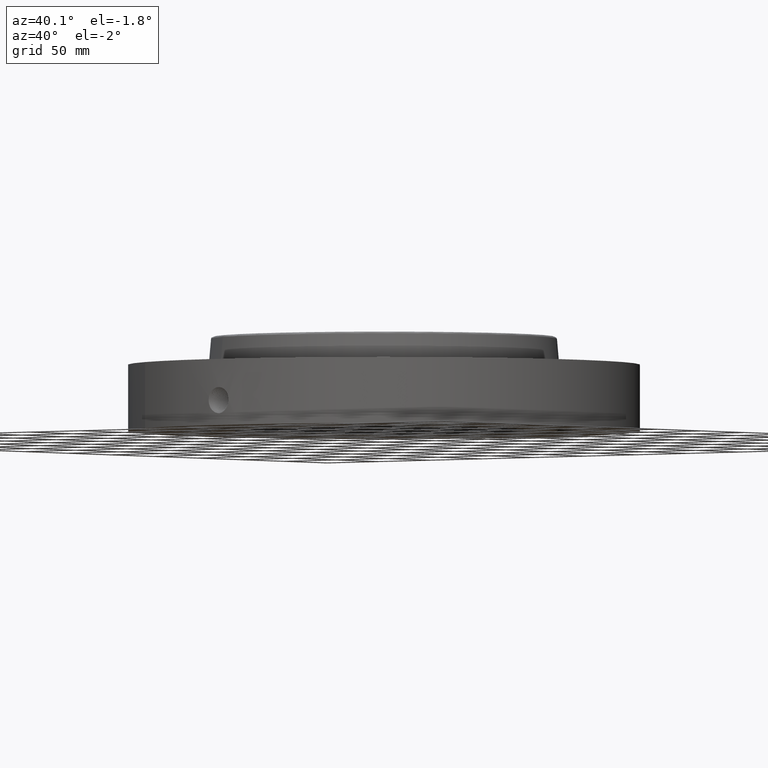
[diagram: clean part render]
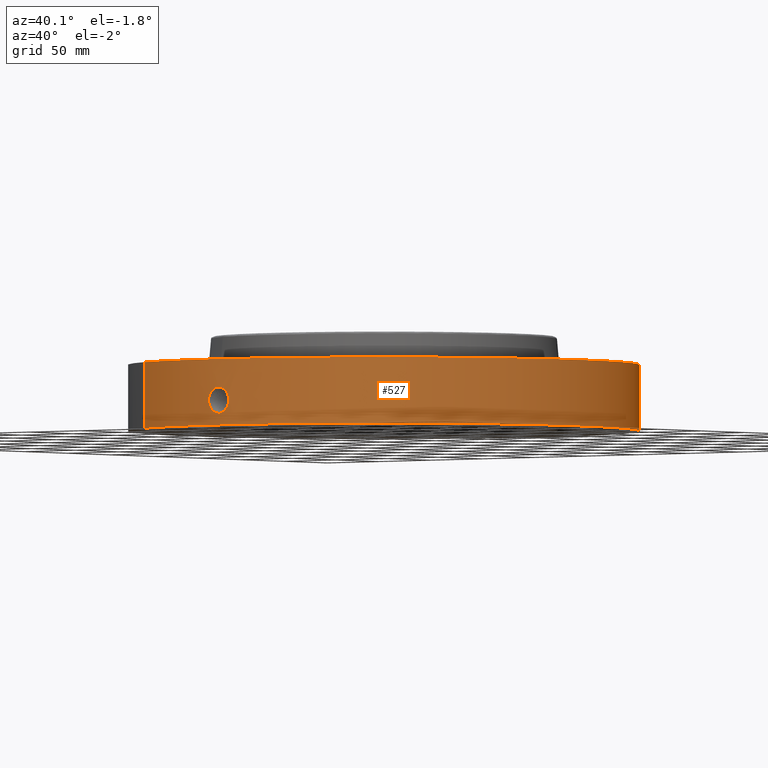
[diagram: same view with one face highlighted and labeled with its STEP entity id]
A machine part, auxiliary view. The second image highlights one B-rep face of the part: STEP entity #527.
In plain terms, the highlighted cylindrical surface (partial cylindrical patch) has radius 190.5 mm, axis along (0, 0, -1).
Its self-contained STEP definition (entity closure, byte-faithful):
#38=AXIS2_PLACEMENT_3D('Cylinder Axis2P3D',#35,#36,#37) ;
#169=AXIS2_PLACEMENT_3D('Circle Axis2P3D',#167,#168,$) ;
#431=AXIS2_PLACEMENT_3D('Circle Axis2P3D',#429,#430,$) ;
#35=CARTESIAN_POINT('Axis2P3D Location',(0.,7.99652833788E-018,1.37650000001)) ;
#44=CARTESIAN_POINT('Vertex',(-3.59569153955,-6.5818692142,5.59482469102E-016)) ;
#46=CARTESIAN_POINT('Vertex',(3.59569153955,6.5818692142,5.59482469102E-016)) ;
#49=CARTESIAN_POINT('Line Origine',(-3.59569153955,-6.5818692142,0.966500000004)) ;
#53=CARTESIAN_POINT('Vertex',(-3.59569153955,-6.5818692142,1.93300000001)) ;
#60=CARTESIAN_POINT('Vertex',(3.59569153955,6.5818692142,1.93300000001)) ;
#63=CARTESIAN_POINT('Line Origine',(3.59569153955,6.5818692142,0.966500000004)) ;
#167=CARTESIAN_POINT('Axis2P3D Location',(0.,0.,0.)) ;
#429=CARTESIAN_POINT('Axis2P3D Location',(0.,7.99652833788E-018,1.93300000001)) ;
#441=CARTESIAN_POINT('Control Point',(0.0594104657575,-7.49976468944,1.0990922853)) ;
#442=CARTESIAN_POINT('Control Point',(0.0400312568277,-7.49991820464,1.1023952919)) ;
#443=CARTESIAN_POINT('Control Point',(0.0203755811909,-7.49999808801,1.10407863695)) ;
#444=CARTESIAN_POINT('Control Point',(0.000716383780212,-7.49999996582,1.1041184985)) ;
#445=CARTESIAN_POINT('Vertex',(0.0593950914335,-7.49976506884,1.09909519577)) ;
#447=CARTESIAN_POINT('Vertex',(0.000716239520853,-7.49999996583,1.10411850891)) ;
#451=CARTESIAN_POINT('Control Point',(0.0593949822323,-7.49976481208,1.09909460985)) ;
#452=CARTESIAN_POINT('Control Point',(0.0983071289922,-7.49945664425,1.09408889341)) ;
#453=CARTESIAN_POINT('Control Point',(0.136422905128,-7.49884068805,1.08199894333)) ;
#454=CARTESIAN_POINT('Control Point',(0.171383379675,-7.49804159348,1.06374697693)) ;
#455=CARTESIAN_POINT('Vertex',(0.171383379675,-7.49804159348,1.06374697693)) ;
#459=CARTESIAN_POINT('Control Point',(0.029992772153,-7.4999400287,0.341113893808)) ;
#460=CARTESIAN_POINT('Control Point',(0.0859754396106,-7.49971615019,0.348246903299)) ;
#461=CARTESIAN_POINT('Control Point',(0.140353565065,-7.49897633265,0.365868386152)) ;
#462=CARTESIAN_POINT('Control Point',(0.190340993756,-7.49778994167,0.393444729033)) ;
#463=CARTESIAN_POINT('Control Point',(0.279604077354,-7.49501968231,0.466390974273)) ;
#464=CARTESIAN_POINT('Control Point',(0.337036155683,-7.49248678997,0.564528648789)) ;
#465=CARTESIAN_POINT('Control Point',(0.356841432344,-7.49151237844,0.619126431182)) ;
#466=CARTESIAN_POINT('Control Point',(0.372324281724,-7.49075487682,0.708434539805)) ;
#467=CARTESIAN_POINT('Control Point',(0.363000444555,-7.49121104759,0.79691789972)) ;
#468=CARTESIAN_POINT('Control Point',(0.356248771068,-7.4915413381,0.828863032848)) ;
#469=CARTESIAN_POINT('Control Point',(0.331184300143,-7.49272777792,0.906388909321)) ;
#470=CARTESIAN_POINT('Control Point',(0.286591770134,-7.49460191479,0.974928410852)) ;
#471=CARTESIAN_POINT('Control Point',(0.253241586827,-7.49586399114,1.01135982888)) ;
#472=CARTESIAN_POINT('Control Point',(0.214254502857,-7.49706168455,1.04136506218)) ;
#473=CARTESIAN_POINT('Control Point',(0.171383379675,-7.49804159348,1.06374697693)) ;
#474=CARTESIAN_POINT('Vertex',(0.029992772153,-7.4999400287,0.341113893808)) ;
#478=CARTESIAN_POINT('Control Point',(0.029992772153,-7.4999400287,0.341113893808)) ;
#479=CARTESIAN_POINT('Control Point',(0.0199890293421,-7.49998003435,0.340863903436)) ;
#480=CARTESIAN_POINT('Control Point',(0.0099811133717,-7.50000000366,0.340950971607)) ;
#481=CARTESIAN_POINT('Control Point',(-2.72878353684E-006,-7.50000000003,0.341374667804)) ;
#482=CARTESIAN_POINT('Vertex',(-2.72878353855E-006,-7.50000000003,0.341374667804)) ;
#486=CARTESIAN_POINT('Control Point',(-0.193541975774,-7.49750235105,0.395733331631)) ;
#487=CARTESIAN_POINT('Control Point',(-0.14936088554,-7.49864285026,0.371061430606)) ;
#488=CARTESIAN_POINT('Control Point',(-0.101191729167,-7.4995398925,0.353440904324)) ;
#489=CARTESIAN_POINT('Control Point',(-0.0508339965705,-7.49999998154,0.343531855698)) ;
#490=CARTESIAN_POINT('Control Point',(-2.72878353016E-006,-7.50000000003,0.341374667804)) ;
#491=CARTESIAN_POINT('Vertex',(-0.193541975774,-7.49750235105,0.395733331631)) ;
#495=CARTESIAN_POINT('Control Point',(-0.193541975774,-7.49750235105,0.395733331631)) ;
#496=CARTESIAN_POINT('Control Point',(-0.222748754013,-7.49674840163,0.412043176075)) ;
#497=CARTESIAN_POINT('Control Point',(-0.250325990989,-7.49589420272,0.431241150522)) ;
#498=CARTESIAN_POINT('Control Point',(-0.275868495729,-7.49498170376,0.45317041227)) ;
#499=CARTESIAN_POINT('Control Point',(-0.343186210977,-7.49231400116,0.524369680902)) ;
#500=CARTESIAN_POINT('Control Point',(-0.386533259801,-7.49008386226,0.613767589478)) ;
#501=CARTESIAN_POINT('Control Point',(-0.402018377371,-7.48920042012,0.677978855027)) ;
#502=CARTESIAN_POINT('Control Point',(-0.403436670721,-7.48917299794,0.792126796457)) ;
#503=CARTESIAN_POINT('Control Point',(-0.363754548984,-7.49120560471,0.896797209326)) ;
#504=CARTESIAN_POINT('Control Point',(-0.339669157487,-7.49238294558,0.938229060689)) ;
#505=CARTESIAN_POINT('Control Point',(-0.270518817152,-7.49538151079,1.02297811581)) ;
#506=CARTESIAN_POINT('Control Point',(-0.177019569708,-7.49821402013,1.07827174753)) ;
#507=CARTESIAN_POINT('Control Point',(-0.119045042946,-7.49941832226,1.09847396335)) ;
#508=CARTESIAN_POINT('Control Point',(-0.0590717686378,-7.50000020374,1.10705030606)) ;
#509=CARTESIAN_POINT('Control Point',(2.58579355351E-005,-7.49999999999,1.10415298433)) ;
#510=CARTESIAN_POINT('Vertex',(2.58579355316E-005,-7.49999999999,1.10415298433)) ;
#514=CARTESIAN_POINT('Control Point',(0.000716239510403,-7.49999996583,1.1041185089)) ;
#515=CARTESIAN_POINT('Control Point',(0.000371072583571,-7.49999999879,1.10413605984)) ;
#516=CARTESIAN_POINT('Control Point',(2.58579416904E-005,-7.49999999999,1.10415298433)) ;
#36=DIRECTION('Axis2P3D Direction',(0.,0.,-0.0393700787402)) ;
#37=DIRECTION('Axis2P3D XDirection',(0.0188750212049,0.0345504945626,0.)) ;
#50=DIRECTION('Vector Direction',(0.,0.,-0.0393700787402)) ;
#64=DIRECTION('Vector Direction',(0.,0.,-0.0393700787402)) ;
#168=DIRECTION('Axis2P3D Direction',(0.,0.,-0.0393700787402)) ;
#430=DIRECTION('Axis2P3D Direction',(0.,0.,-0.0393700787402)) ;
#51=VECTOR('Line Direction',#50,0.0393700787402) ;
#65=VECTOR('Line Direction',#64,0.0393700787402) ;
#435=ORIENTED_EDGE('',*,*,#171,.F.) ;
#436=ORIENTED_EDGE('',*,*,#67,.T.) ;
#437=ORIENTED_EDGE('',*,*,#433,.T.) ;
#438=ORIENTED_EDGE('',*,*,#55,.F.) ;
#519=ORIENTED_EDGE('',*,*,#449,.F.) ;
#520=ORIENTED_EDGE('',*,*,#457,.T.) ;
#521=ORIENTED_EDGE('',*,*,#476,.F.) ;
#522=ORIENTED_EDGE('',*,*,#484,.T.) ;
#523=ORIENTED_EDGE('',*,*,#493,.F.) ;
#524=ORIENTED_EDGE('',*,*,#512,.T.) ;
#525=ORIENTED_EDGE('',*,*,#517,.F.) ;
#526=FACE_BOUND('',#518,.T.) ;
#527=ADVANCED_FACE('PartBody',(#439,#526),#39,.T.) ;
#440=B_SPLINE_CURVE_WITH_KNOTS('',3,(#441,#442,#443,#444),.UNSPECIFIED.,.F.,.U.,(4,4),(4.34044685267,6.52145691832),.UNSPECIFIED.) ;
#450=B_SPLINE_CURVE_WITH_KNOTS('',3,(#451,#452,#453,#454),.UNSPECIFIED.,.F.,.U.,(4,4),(0.,4.40819749939),.UNSPECIFIED.) ;
#458=B_SPLINE_CURVE_WITH_KNOTS('',5,(#459,#460,#461,#462,#463,#464,#465,#466,#467,#468,#469,#470,#471,#472,#473),.UNSPECIFIED.,.F.,.U.,(6,3,3,3,6),(0.,9.80825177075,20.128665686,26.1171537385,35.1265843212),.UNSPECIFIED.) ;
#477=B_SPLINE_CURVE_WITH_KNOTS('',3,(#478,#479,#480,#481),.UNSPECIFIED.,.F.,.U.,(4,4),(0.,1.0434282601),.UNSPECIFIED.) ;
#485=B_SPLINE_CURVE_WITH_KNOTS('',4,(#486,#487,#488,#489,#490),.UNSPECIFIED.,.F.,.U.,(5,5),(0.,7.08328257297),.UNSPECIFIED.) ;
#494=B_SPLINE_CURVE_WITH_KNOTS('',5,(#495,#496,#497,#498,#499,#500,#501,#502,#503,#504,#505,#506,#507,#508,#509),.UNSPECIFIED.,.F.,.U.,(6,3,3,3,6),(0.,5.85317892695,17.0650552935,25.4867114789,36.5332829228),.UNSPECIFIED.) ;
#513=B_SPLINE_CURVE_WITH_KNOTS('',2,(#514,#515,#516),.UNSPECIFIED.,.F.,.U.,(3,3),(1.05656067499,1.08237178537),.UNSPECIFIED.) ;
#170=CIRCLE('generated circle',#169,7.50000000003) ;
#432=CIRCLE('generated circle',#431,7.50000000003) ;
#39=CYLINDRICAL_SURFACE('generated cylinder',#38,7.50000000003) ;
#55=EDGE_CURVE('',#45,#54,#52,.F.) ;
#67=EDGE_CURVE('',#47,#61,#66,.F.) ;
#171=EDGE_CURVE('',#47,#45,#170,.T.) ;
#433=EDGE_CURVE('',#61,#54,#432,.T.) ;
#449=EDGE_CURVE('',#446,#448,#440,.T.) ;
#457=EDGE_CURVE('',#446,#456,#450,.T.) ;
#476=EDGE_CURVE('',#475,#456,#458,.T.) ;
#484=EDGE_CURVE('',#475,#483,#477,.T.) ;
#493=EDGE_CURVE('',#492,#483,#485,.T.) ;
#512=EDGE_CURVE('',#492,#511,#494,.T.) ;
#517=EDGE_CURVE('',#448,#511,#513,.T.) ;
#434=EDGE_LOOP('',(#435,#436,#437,#438)) ;
#518=EDGE_LOOP('',(#519,#520,#521,#522,#523,#524,#525)) ;
#439=FACE_OUTER_BOUND('',#434,.T.) ;
#52=LINE('Line',#49,#51) ;
#66=LINE('Line',#63,#65) ;
#45=VERTEX_POINT('',#44) ;
#47=VERTEX_POINT('',#46) ;
#54=VERTEX_POINT('',#53) ;
#61=VERTEX_POINT('',#60) ;
#446=VERTEX_POINT('',#445) ;
#448=VERTEX_POINT('',#447) ;
#456=VERTEX_POINT('',#455) ;
#475=VERTEX_POINT('',#474) ;
#483=VERTEX_POINT('',#482) ;
#492=VERTEX_POINT('',#491) ;
#511=VERTEX_POINT('',#510) ;